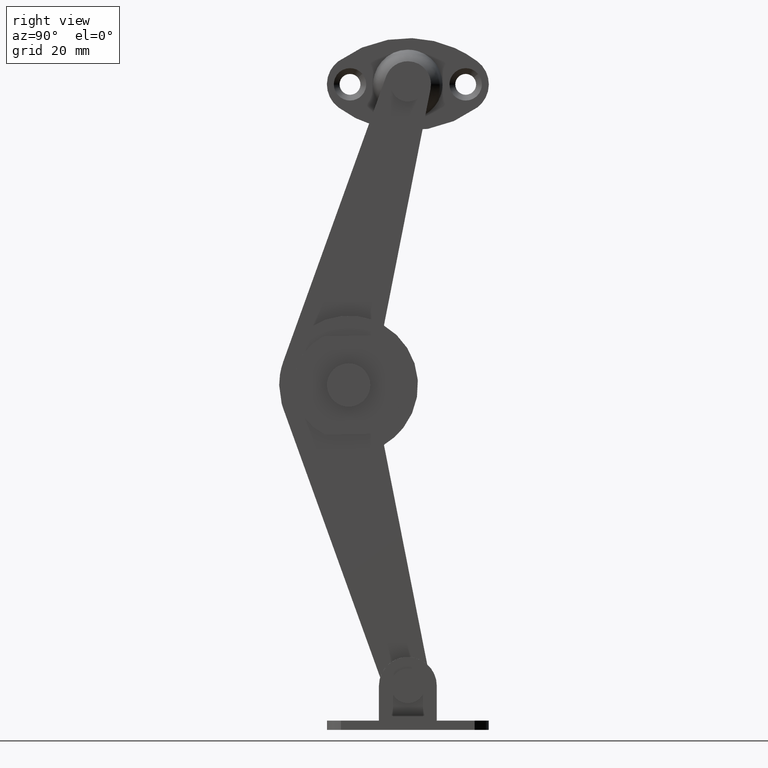
[diagram: clean part render]
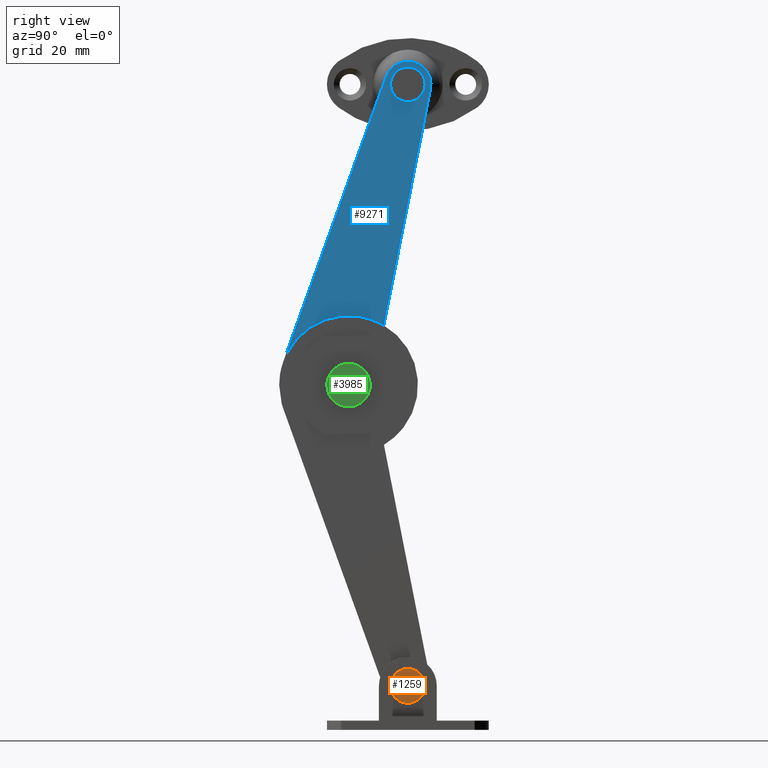
[diagram: same view with three faces highlighted in distinct colors, each labeled with its STEP entity id]
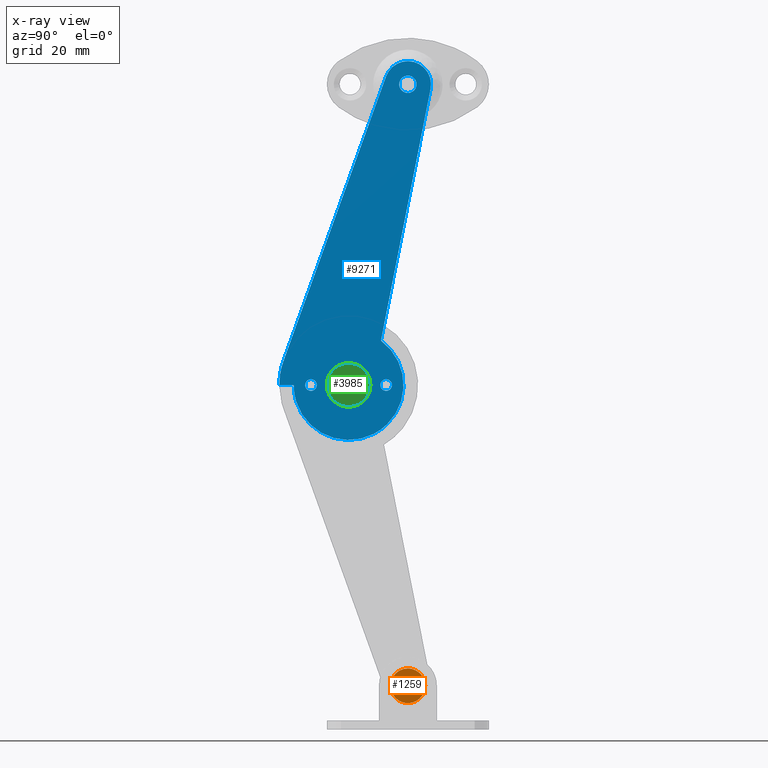
[diagram: x-ray of the same camera — body ghosted, the three highlighted faces saturated]
A machine part, right view with three faces highlighted in distinct colors.
The next image is the same camera in x-ray (body ghosted, the three faces saturated) — at least one of them is partly hidden behind the body in this view.
Their STEP definitions:

[orange] entity #1259 — the highlighted face is a freeform B-spline surface patch.
#910=CARTESIAN_POINT('',(12.299996948242200,-2.149952449955545,-49.907704330964222));
#911=VERTEX_POINT('',#910);
#917=CARTESIAN_POINT('',(12.299996948242200,0.0,-48.999999999999993));
#918=VERTEX_POINT('',#917);
#919=CARTESIAN_POINT('',(12.299996948242200,0.0,-48.999999999999993));
#920=CARTESIAN_POINT('',(12.299996948242200,-0.274665622094044,-48.999901857672981));
#921=CARTESIAN_POINT('',(12.299996948242219,-0.749003718400107,-49.065626616819152));
#922=CARTESIAN_POINT('',(12.299996948242180,-1.496340083006876,-49.359372972187408));
#923=CARTESIAN_POINT('',(12.299996948242219,-1.923702663882289,-49.674915316767247));
#924=CARTESIAN_POINT('',(12.299996948242200,-2.149952449955545,-49.907704330964222));
#925=B_SPLINE_CURVE_WITH_KNOTS('',3,(#919,#920,#921,#922,#923,#924),.UNSPECIFIED.,.F.,.U.,(4,1,1,4),(0.000000035588208,0.823987056845453,1.423224756978765,2.397027281891845),.UNSPECIFIED.);
#926=EDGE_CURVE('',#918,#911,#925,.T.);
#928=CARTESIAN_POINT('',(12.299996948242200,2.999999999999194,-51.999997801678717));
#929=VERTEX_POINT('',#928);
#930=CARTESIAN_POINT('',(12.299996948242200,2.999999999999194,-51.999997801678717));
#931=CARTESIAN_POINT('',(12.299996948242191,3.000544825496204,-51.582668204915223));
#932=CARTESIAN_POINT('',(12.299996948242210,2.849004092391585,-50.871339218554937));
#933=CARTESIAN_POINT('',(12.299996948242210,2.357784113028184,-50.095823077644177));
#934=CARTESIAN_POINT('',(12.299996948242150,1.857589642621747,-49.619715673744999));
#935=CARTESIAN_POINT('',(12.299996948242301,1.399204448902100,-49.329464476093356));
#936=CARTESIAN_POINT('',(12.299996948241940,0.785302707839386,-49.075107326548157));
#937=CARTESIAN_POINT('',(12.299996948242450,0.319092779510090,-48.999831380902833));
#938=CARTESIAN_POINT('',(12.299996948242200,0.0,-48.999999999999993));
#939=B_SPLINE_CURVE_WITH_KNOTS('',3,(#930,#931,#932,#933,#934,#935,#936,#937,#938),.UNSPECIFIED.,.F.,.U.,(4,1,1,1,1,1,4),(0.000000083131377,1.251760573757512,2.135372680041851,2.724391496880097,3.313474384746044,3.755284644076879,4.712505993963672),.UNSPECIFIED.);
#940=EDGE_CURVE('',#929,#918,#939,.T.);
#942=CARTESIAN_POINT('',(12.299996948242200,0.0,-55.0));
#943=VERTEX_POINT('',#942);
#944=CARTESIAN_POINT('',(12.299996948242200,0.0,-55.0));
#945=CARTESIAN_POINT('',(12.299996948242200,0.319093977064725,-55.000168677985023));
#946=CARTESIAN_POINT('',(12.299996948242210,0.785303079312280,-54.924891132133013));
#947=CARTESIAN_POINT('',(12.299996948242191,1.399204909221669,-54.670534527755812));
#948=CARTESIAN_POINT('',(12.299996948242200,1.857601937216594,-54.380286105109683));
#949=CARTESIAN_POINT('',(12.299996948242210,2.286267755007980,-53.972154559812282));
#950=CARTESIAN_POINT('',(12.299996948242191,2.627083385719234,-53.488234411218620));
#951=CARTESIAN_POINT('',(12.299996948242210,2.916964187890844,-52.834387503728848));
#952=CARTESIAN_POINT('',(12.299996948242200,3.000174020348590,-52.319088819190434));
#953=CARTESIAN_POINT('',(12.299996948242200,2.999999999999194,-51.999997801678717));
#954=B_SPLINE_CURVE_WITH_KNOTS('',3,(#944,#945,#946,#947,#948,#949,#950,#951,#952,#953),.UNSPECIFIED.,.F.,.U.,(4,1,1,1,1,1,1,4),(0.000000080110220,0.957223162313735,1.399033147924905,1.988114693766390,2.577133832278411,3.166201750301311,3.755286619770232,4.712508472046021),.UNSPECIFIED.);
#955=EDGE_CURVE('',#943,#929,#954,.T.);
#957=CARTESIAN_POINT('',(12.299996948242200,-2.211832345539840,-54.026771067525189));
#958=VERTEX_POINT('',#957);
#959=CARTESIAN_POINT('',(12.299996948242200,-2.211832345539840,-54.026771067525189));
#960=CARTESIAN_POINT('',(12.299996948242200,-1.949553236368220,-54.313629417733132));
#961=CARTESIAN_POINT('',(12.299996948242200,-1.460295383111385,-54.673039882785332));
#962=CARTESIAN_POINT('',(12.299996948242210,-0.673558610006830,-54.948379226091276));
#963=CARTESIAN_POINT('',(12.299996948242210,-0.233169055009871,-55.000049763189288));
#964=CARTESIAN_POINT('',(12.299996948242200,0.0,-55.0));
#965=B_SPLINE_CURVE_WITH_KNOTS('',3,(#959,#960,#961,#962,#963,#964),.UNSPECIFIED.,.F.,.U.,(4,1,1,4),(0.000000023746991,1.165858597327738,1.787648974361554,2.487163845338240),.UNSPECIFIED.);
#966=EDGE_CURVE('',#958,#943,#965,.T.);
#1050=CARTESIAN_POINT('',(12.299996948242200,-2.999999999999194,-52.000002198321262));
#1051=VERTEX_POINT('',#1050);
#1052=CARTESIAN_POINT('',(12.299996948242200,-2.999999999999194,-52.000002198321262));
#1053=CARTESIAN_POINT('',(12.299996948242210,-3.000451542872161,-52.394132422153668));
#1054=CARTESIAN_POINT('',(12.299996948242150,-2.851523992854785,-53.135492659642388));
#1055=CARTESIAN_POINT('',(12.299996948242240,-2.446955882598586,-53.770565085851793));
#1056=CARTESIAN_POINT('',(12.299996948242200,-2.211832345539840,-54.026771067525189));
#1057=B_SPLINE_CURVE_WITH_KNOTS('',3,(#1052,#1053,#1054,#1055,#1056),.UNSPECIFIED.,.F.,.U.,(4,1,4),(0.000000039538871,1.182203918131734,2.225342712404399),.UNSPECIFIED.);
#1058=EDGE_CURVE('',#1051,#958,#1057,.T.);
#1060=CARTESIAN_POINT('',(12.299996948242200,-2.149952449955545,-49.907704330964222));
#1061=CARTESIAN_POINT('',(12.299996948242200,-2.368766150444576,-50.132313160654007));
#1062=CARTESIAN_POINT('',(12.299996948242200,-2.664363576903597,-50.551235312224541));
#1063=CARTESIAN_POINT('',(12.299996948242191,-2.938792342332988,-51.276472356593743));
#1064=CARTESIAN_POINT('',(12.299996948242200,-3.000084573453634,-51.734681899306729));
#1065=CARTESIAN_POINT('',(12.299996948242200,-2.999999999999194,-52.000002198321262));
#1066=B_SPLINE_CURVE_WITH_KNOTS('',3,(#1060,#1061,#1062,#1063,#1064,#1065),.UNSPECIFIED.,.F.,.U.,(4,1,1,4),(0.000000030067632,0.940673730284006,1.519526927310841,2.315481823150456),.UNSPECIFIED.);
#1067=EDGE_CURVE('',#911,#1051,#1066,.T.);
#1246=CARTESIAN_POINT('',(12.299996948242200,-3.299699988369949,-48.700300011629153));
#1247=CARTESIAN_POINT('',(12.299996948242200,-3.299699988369949,-55.299700149303384));
#1248=CARTESIAN_POINT('',(12.299996948242200,3.299700149302490,-48.700300011629153));
#1249=CARTESIAN_POINT('',(12.299996948242200,3.299700149302490,-55.299700149303384));
#1250=B_SPLINE_SURFACE_WITH_KNOTS('',1,1,((#1246,#1248),(#1247,#1249)),.UNSPECIFIED.,.F.,.F.,.U.,(2,2),(2,2),(0.0,6.599400137674223),(0.0,6.599400137672440),.UNSPECIFIED.);
#1251=ORIENTED_EDGE('',*,*,#926,.T.);
#1252=ORIENTED_EDGE('',*,*,#1067,.T.);
#1253=ORIENTED_EDGE('',*,*,#1058,.T.);
#1254=ORIENTED_EDGE('',*,*,#966,.T.);
#1255=ORIENTED_EDGE('',*,*,#955,.T.);
#1256=ORIENTED_EDGE('',*,*,#940,.T.);
#1257=EDGE_LOOP('',(#1251,#1252,#1253,#1254,#1255,#1256));
#1258=FACE_OUTER_BOUND('',#1257,.T.);
#1259=ADVANCED_FACE('',(#1258),#1250,.T.);

[blue] entity #9271 — the highlighted face is a freeform B-spline surface patch.
#8393=CARTESIAN_POINT('',(7.099998474121129,-16.746973262321148,0.999999999999998));
#8394=VERTEX_POINT('',#8393);
#8395=CARTESIAN_POINT('',(7.099998474121039,-16.030322447163680,0.697432153785637));
#8396=VERTEX_POINT('',#8395);
#8397=CARTESIAN_POINT('',(7.099998474121129,-16.746973262321148,0.999999999999998));
#8398=CARTESIAN_POINT('',(7.099998474121127,-16.622111615370379,1.000093147319487));
#8399=CARTESIAN_POINT('',(7.099998474121049,-16.355874330089421,0.949465219307710));
#8400=CARTESIAN_POINT('',(7.099998474121067,-16.128877241609430,0.798975673064963));
#8401=CARTESIAN_POINT('',(7.099998474121039,-16.030322447163680,0.697432153785637));
#8402=B_SPLINE_CURVE_WITH_KNOTS('',3,(#8397,#8398,#8399,#8400,#8401),.UNSPECIFIED.,.F.,.U.,(4,1,4),(0.000000076756543,0.374556771673141,0.799008976803986),.UNSPECIFIED.);
#8403=EDGE_CURVE('',#8394,#8396,#8402,.T.);
#8405=CARTESIAN_POINT('',(7.099998474121129,-17.746973262321148,-2.220446E-015));
#8406=VERTEX_POINT('',#8405);
#8407=CARTESIAN_POINT('',(7.099998474121129,-17.746973262321148,-2.220446E-015));
#8408=CARTESIAN_POINT('',(7.099998474121128,-17.747026620693539,0.106361786999032));
#8409=CARTESIAN_POINT('',(7.099998474121134,-17.714029834023329,0.310852011469666));
#8410=CARTESIAN_POINT('',(7.099998474121125,-17.561654458519669,0.613806907627810));
#8411=CARTESIAN_POINT('',(7.099998474121133,-17.332154703696741,0.832323547495627));
#8412=CARTESIAN_POINT('',(7.099998474121123,-17.041454900448361,0.969669959522368));
#8413=CARTESIAN_POINT('',(7.099998474121137,-16.853332941561320,1.000062170587517));
#8414=CARTESIAN_POINT('',(7.099998474121129,-16.746973262321148,0.999999999999998));
#8415=B_SPLINE_CURVE_WITH_KNOTS('',3,(#8407,#8408,#8409,#8410,#8411,#8412,#8413,#8414),.UNSPECIFIED.,.F.,.U.,(4,1,1,1,1,4),(0.000000280011996,0.319075622355065,0.613615477763881,1.006309350944507,1.251767417333637,1.570835744389341),.UNSPECIFIED.);
#8416=EDGE_CURVE('',#8406,#8394,#8415,.T.);
#8418=CARTESIAN_POINT('',(7.099998474121129,-16.746973262321148,-1.000000000000002));
#8419=VERTEX_POINT('',#8418);
#8420=CARTESIAN_POINT('',(7.099998474121129,-16.746973262321148,-1.000000000000002));
#8421=CARTESIAN_POINT('',(7.099998474121130,-16.869707082657289,-1.000101785145862));
#8422=CARTESIAN_POINT('',(7.099998474121124,-17.098701757209589,-0.957285573201325));
#8423=CARTESIAN_POINT('',(7.099998474121152,-17.420954392879651,-0.769630472375379));
#8424=CARTESIAN_POINT('',(7.099998474121076,-17.676909887072309,-0.449766441637667));
#8425=CARTESIAN_POINT('',(7.099998474121192,-17.747244164864242,-0.155496370471508));
#8426=CARTESIAN_POINT('',(7.099998474121129,-17.746973262321148,-2.220446E-015));
#8427=B_SPLINE_CURVE_WITH_KNOTS('',3,(#8420,#8421,#8422,#8423,#8424,#8425,#8426),.UNSPECIFIED.,.F.,.U.,(4,1,1,1,4),(0.000000280011188,0.368165073058050,0.687270838010319,1.104486430735103,1.570835744389358),.UNSPECIFIED.);
#8428=EDGE_CURVE('',#8419,#8406,#8427,.T.);
#8430=CARTESIAN_POINT('',(7.099998474121095,-16.009696019405052,-0.675590310082981));
#8431=VERTEX_POINT('',#8430);
#8432=CARTESIAN_POINT('',(7.099998474121095,-16.009696019405052,-0.675590310082981));
#8433=CARTESIAN_POINT('',(7.099998474121104,-16.079678337667929,-0.752021527205665));
#8434=CARTESIAN_POINT('',(7.099998474121104,-16.298328931152600,-0.926494346714773));
#8435=CARTESIAN_POINT('',(7.099998474121128,-16.574143994255579,-1.000469218514898));
#8436=CARTESIAN_POINT('',(7.099998474121129,-16.746973262321148,-1.000000000000002));
#8437=B_SPLINE_CURVE_WITH_KNOTS('',3,(#8432,#8433,#8434,#8435,#8436),.UNSPECIFIED.,.F.,.U.,(4,1,4),(0.000000092268487,0.310905254828941,0.829054434304974),.UNSPECIFIED.);
#8438=EDGE_CURVE('',#8431,#8419,#8437,.T.);
#8516=CARTESIAN_POINT('',(7.099998474121129,-15.746973262321150,-2.220446E-015));
#8517=VERTEX_POINT('',#8516);
#8518=CARTESIAN_POINT('',(7.099998474121039,-16.030322447163680,0.697432153785637));
#8519=CARTESIAN_POINT('',(7.099998474121045,-15.963014172180999,0.628313205574819));
#8520=CARTESIAN_POINT('',(7.099998474121084,-15.810470944008429,0.417769959727234));
#8521=CARTESIAN_POINT('',(7.099998474121104,-15.746613735473520,0.160875180784883));
#8522=CARTESIAN_POINT('',(7.099998474121129,-15.746973262321150,-2.220446E-015));
#8523=B_SPLINE_CURVE_WITH_KNOTS('',3,(#8518,#8519,#8520,#8521,#8522),.UNSPECIFIED.,.F.,.U.,(4,1,4),(0.000000064587901,0.289442960097438,0.771826802563741),.UNSPECIFIED.);
#8524=EDGE_CURVE('',#8396,#8517,#8523,.T.);
#8546=CARTESIAN_POINT('',(7.099998474121129,-15.746973262321150,-2.220446E-015));
#8547=CARTESIAN_POINT('',(7.099998474121120,-15.746667377430580,-0.154602939349846));
#8548=CARTESIAN_POINT('',(7.099998474121104,-15.805523596813799,-0.401552256009830));
#8549=CARTESIAN_POINT('',(7.099998474121100,-15.947035595503280,-0.607247917592661));
#8550=CARTESIAN_POINT('',(7.099998474121095,-16.009696019405052,-0.675590310082981));
#8551=B_SPLINE_CURVE_WITH_KNOTS('',3,(#8546,#8547,#8548,#8549,#8550),.UNSPECIFIED.,.F.,.U.,(4,1,4),(0.000000066372231,0.463613357167976,0.741781674460226),.UNSPECIFIED.);
#8552=EDGE_CURVE('',#8517,#8431,#8551,.T.);
#8583=CARTESIAN_POINT('',(7.099998474121129,-3.746973262321150,1.000000000000002));
#8584=VERTEX_POINT('',#8583);
#8585=CARTESIAN_POINT('',(7.099998474121039,-3.030322447163677,0.697432153785642));
#8586=VERTEX_POINT('',#8585);
#8587=CARTESIAN_POINT('',(7.099998474121129,-3.746973262321150,1.000000000000002));
#8588=CARTESIAN_POINT('',(7.099998474121104,-3.580422453996916,1.000408303964570));
#8589=CARTESIAN_POINT('',(7.099998474121079,-3.314531221267432,0.931849378526263));
#8590=CARTESIAN_POINT('',(7.099998474121051,-3.099955463389899,0.769029342958563));
#8591=CARTESIAN_POINT('',(7.099998474121039,-3.030322447163677,0.697432153785642));
#8592=B_SPLINE_CURVE_WITH_KNOTS('',3,(#8587,#8588,#8589,#8590,#8591),.UNSPECIFIED.,.F.,.U.,(4,1,4),(0.000000076756712,0.499371896076187,0.799008976803982),.UNSPECIFIED.);
#8593=EDGE_CURVE('',#8584,#8586,#8592,.T.);
#8595=CARTESIAN_POINT('',(7.099998474121129,-4.746973262321151,2.220446E-015));
#8596=VERTEX_POINT('',#8595);
#8597=CARTESIAN_POINT('',(7.099998474121129,-4.746973262321151,2.220446E-015));
#8598=CARTESIAN_POINT('',(7.099998474121128,-4.747075180859444,0.122733834214977));
#8599=CARTESIAN_POINT('',(7.099998474121137,-4.704269077375797,0.351740674881284));
#8600=CARTESIAN_POINT('',(7.099998474121126,-4.554065330004074,0.609441352447836));
#8601=CARTESIAN_POINT('',(7.099998474121136,-4.350601764463210,0.812918026070344));
#8602=CARTESIAN_POINT('',(7.099998474121120,-4.090573429253155,0.960241351177768));
#8603=CARTESIAN_POINT('',(7.099998474121131,-3.861513903400657,1.000069467207407));
#8604=CARTESIAN_POINT('',(7.099998474121129,-3.746973262321150,1.000000000000002));
#8605=B_SPLINE_CURVE_WITH_KNOTS('',3,(#8597,#8598,#8599,#8600,#8601,#8602,#8603,#8604),.UNSPECIFIED.,.F.,.U.,(4,1,1,1,1,4),(0.000000280012651,0.368165073059368,0.687270838011445,0.883567168157144,1.227218534335262,1.570835744389344),.UNSPECIFIED.);
#8606=EDGE_CURVE('',#8596,#8584,#8605,.T.);
#8608=CARTESIAN_POINT('',(7.099998474121129,-3.746973262321150,-0.999999999999998));
#8609=VERTEX_POINT('',#8608);
#8610=CARTESIAN_POINT('',(7.099998474121129,-3.746973262321150,-0.999999999999998));
#8611=CARTESIAN_POINT('',(7.099998474121132,-3.877894249240295,-1.000128257328976));
#8612=CARTESIAN_POINT('',(7.099998474121143,-4.090507193776364,-0.957621135381529));
#8613=CARTESIAN_POINT('',(7.099998474121119,-4.334333282010090,-0.819423831503331));
#8614=CARTESIAN_POINT('',(7.099998474121138,-4.517085298945657,-0.653817672574192));
#8615=CARTESIAN_POINT('',(7.099998474121126,-4.691727929805286,-0.392544418537612));
#8616=CARTESIAN_POINT('',(7.099998474121118,-4.747202224657213,-0.147303716996195));
#8617=CARTESIAN_POINT('',(7.099998474121129,-4.746973262321151,2.220446E-015));
#8618=B_SPLINE_CURVE_WITH_KNOTS('',3,(#8610,#8611,#8612,#8613,#8614,#8615,#8616,#8617),.UNSPECIFIED.,.F.,.U.,(4,1,1,1,1,4),(0.000000280012036,0.392710031347957,0.638181018193273,0.834486872022428,1.129035313803002,1.570835744389347),.UNSPECIFIED.);
#8619=EDGE_CURVE('',#8609,#8596,#8618,.T.);
#8621=CARTESIAN_POINT('',(7.099998474121095,-3.009696019405052,-0.675590310082977));
#8622=VERTEX_POINT('',#8621);
#8623=CARTESIAN_POINT('',(7.099998474121095,-3.009696019405052,-0.675590310082977));
#8624=CARTESIAN_POINT('',(7.099998474121105,-3.126110854667486,-0.803332185816826));
#8625=CARTESIAN_POINT('',(7.099998474121105,-3.366989889174412,-0.956704878327267));
#8626=CARTESIAN_POINT('',(7.099998474121129,-3.643343209611206,-1.000040174371714));
#8627=CARTESIAN_POINT('',(7.099998474121129,-3.746973262321150,-0.999999999999998));
#8628=B_SPLINE_CURVE_WITH_KNOTS('',3,(#8623,#8624,#8625,#8626,#8627),.UNSPECIFIED.,.F.,.U.,(4,1,4),(0.000000092268409,0.518149271744422,0.829054434304972),.UNSPECIFIED.);
#8629=EDGE_CURVE('',#8622,#8609,#8628,.T.);
#8706=CARTESIAN_POINT('',(7.099998474121129,-2.746973262321150,2.220446E-015));
#8707=VERTEX_POINT('',#8706);
#8708=CARTESIAN_POINT('',(7.099998474121039,-3.030322447163677,0.697432153785642));
#8709=CARTESIAN_POINT('',(7.099998474121053,-2.946140922462551,0.611056186107056));
#8710=CARTESIAN_POINT('',(7.099998474121076,-2.800596619333674,0.393814828222300));
#8711=CARTESIAN_POINT('',(7.099998474121120,-2.746810569731522,0.136691561653115));
#8712=CARTESIAN_POINT('',(7.099998474121129,-2.746973262321150,2.220446E-015));
#8713=B_SPLINE_CURVE_WITH_KNOTS('',3,(#8708,#8709,#8710,#8711,#8712),.UNSPECIFIED.,.F.,.U.,(4,1,4),(0.000000064587768,0.361813031380444,0.771826802563745),.UNSPECIFIED.);
#8714=EDGE_CURVE('',#8586,#8707,#8713,.T.);
#8736=CARTESIAN_POINT('',(7.099998474121129,-2.746973262321150,2.220446E-015));
#8737=CARTESIAN_POINT('',(7.099998474121128,-2.746916013027499,-0.108176843439163));
#8738=CARTESIAN_POINT('',(7.099998474121105,-2.787475319071340,-0.355409285403463));
#8739=CARTESIAN_POINT('',(7.099998474121106,-2.915589004725389,-0.573140448910331));
#8740=CARTESIAN_POINT('',(7.099998474121095,-3.009696019405052,-0.675590310082977));
#8741=B_SPLINE_CURVE_WITH_KNOTS('',3,(#8736,#8737,#8738,#8739,#8740),.UNSPECIFIED.,.F.,.U.,(4,1,4),(0.000000066372189,0.324529800281138,0.741781674460229),.UNSPECIFIED.);
#8742=EDGE_CURVE('',#8707,#8622,#8741,.T.);
#8773=CARTESIAN_POINT('',(7.099998474121129,0.0,53.500000000001002));
#8774=VERTEX_POINT('',#8773);
#8775=CARTESIAN_POINT('',(7.099998474104325,1.074976035034924,53.046147335216062));
#8776=VERTEX_POINT('',#8775);
#8777=CARTESIAN_POINT('',(7.099998474121129,0.0,53.500000000001002));
#8778=CARTESIAN_POINT('',(7.099998474117424,0.237298402549899,53.500450074399787));
#8779=CARTESIAN_POINT('',(7.099998474111164,0.636295440187918,53.403139272658237));
#8780=CARTESIAN_POINT('',(7.099998474106101,0.961835057696225,53.162498820914621));
#8781=CARTESIAN_POINT('',(7.099998474104325,1.074976035034924,53.046147335216062));
#8782=B_SPLINE_CURVE_WITH_KNOTS('',3,(#8777,#8778,#8779,#8780,#8781),.UNSPECIFIED.,.F.,.U.,(4,1,4),(0.000000071664645,0.711613821486281,1.198513672822464),.UNSPECIFIED.);
#8783=EDGE_CURVE('',#8774,#8776,#8782,.T.);
#8785=CARTESIAN_POINT('',(7.099998474121129,-1.499999999996925,52.000003037285950));
#8786=VERTEX_POINT('',#8785);
#8787=CARTESIAN_POINT('',(7.099998474121129,-1.499999999996925,52.000003037285950));
#8788=CARTESIAN_POINT('',(7.099998474121132,-1.500034461915857,52.134988169319890));
#8789=CARTESIAN_POINT('',(7.099998474121132,-1.460018560689324,52.429525701467441));
#8790=CARTESIAN_POINT('',(7.099998474121120,-1.289257253680850,52.802391590595533));
#8791=CARTESIAN_POINT('',(7.099998474121160,-1.034816164014579,53.104690690606652));
#8792=CARTESIAN_POINT('',(7.099998474121093,-0.776612705511251,53.296185240896037));
#8793=CARTESIAN_POINT('',(7.099998474121131,-0.429442945616301,53.455213512610349));
#8794=CARTESIAN_POINT('',(7.099998474121124,-0.171825793958501,53.500125276207427));
#8795=CARTESIAN_POINT('',(7.099998474121129,0.0,53.500000000001002));
#8796=B_SPLINE_CURVE_WITH_KNOTS('',3,(#8787,#8788,#8789,#8790,#8791,#8792,#8793,#8794,#8795),.UNSPECIFIED.,.F.,.U.,(4,1,1,1,1,1,4),(0.000000288012192,0.404968876915910,0.883616298713433,1.214900688058264,1.583094682608181,1.840825606854566,2.356251904649950),.UNSPECIFIED.);
#8797=EDGE_CURVE('',#8786,#8774,#8796,.T.);
#8799=CARTESIAN_POINT('',(7.099998474121129,0.0,50.500000000001002));
#8800=VERTEX_POINT('',#8799);
#8801=CARTESIAN_POINT('',(7.099998474121129,0.0,50.500000000001002));
#8802=CARTESIAN_POINT('',(7.099998474121130,-0.134984285388195,50.499966860888243));
#8803=CARTESIAN_POINT('',(7.099998474121132,-0.429527960111183,50.539978034267087));
#8804=CARTESIAN_POINT('',(7.099998474121120,-0.802375226699323,50.710756008960843));
#8805=CARTESIAN_POINT('',(7.099998474121148,-1.133064214092411,50.989009428068890));
#8806=CARTESIAN_POINT('',(7.099998474121086,-1.414387801818469,51.398896731232959));
#8807=CARTESIAN_POINT('',(7.099998474121164,-1.500332718864026,51.779056051167217));
#8808=CARTESIAN_POINT('',(7.099998474121129,-1.499999999996925,52.000003037285950));
#8809=B_SPLINE_CURVE_WITH_KNOTS('',3,(#8801,#8802,#8803,#8804,#8805,#8806,#8807,#8808),.UNSPECIFIED.,.F.,.U.,(4,1,1,1,1,4),(0.000000283865871,0.404969462296978,0.883617580101473,1.214902451988867,1.693554854033081,2.356255328463363),.UNSPECIFIED.);
#8810=EDGE_CURVE('',#8800,#8786,#8809,.T.);
#8812=CARTESIAN_POINT('',(7.099998474150938,1.105916710460834,50.986614338558283));
#8813=VERTEX_POINT('',#8812);
#8814=CARTESIAN_POINT('',(7.099998474150938,1.105916710460834,50.986614338558283));
#8815=CARTESIAN_POINT('',(7.099998474147399,0.974749636016586,50.843223789744833));
#8816=CARTESIAN_POINT('',(7.099998474138236,0.634459473345056,50.593039695618231));
#8817=CARTESIAN_POINT('',(7.099998474127074,0.220256803634163,50.499661504098938));
#8818=CARTESIAN_POINT('',(7.099998474121129,0.0,50.500000000001002));
#8819=B_SPLINE_CURVE_WITH_KNOTS('',3,(#8814,#8815,#8816,#8817,#8818),.UNSPECIFIED.,.F.,.U.,(4,1,4),(0.000000086124600,0.582950318513772,1.243582391910074),.UNSPECIFIED.);
#8820=EDGE_CURVE('',#8813,#8800,#8819,.T.);
#8899=CARTESIAN_POINT('',(7.099998474121130,1.499999999996925,51.999996962716040));
#8900=VERTEX_POINT('',#8899);
#8901=CARTESIAN_POINT('',(7.099998474104325,1.074976035034924,53.046147335216062));
#8902=CARTESIAN_POINT('',(7.099998474106983,1.235118547542746,52.882154577577033));
#8903=CARTESIAN_POINT('',(7.099998474112374,1.439007807387284,52.542676257284590));
#8904=CARTESIAN_POINT('',(7.099998474118642,1.500056089075356,52.156768068770823));
#8905=CARTESIAN_POINT('',(7.099998474121130,1.499999999996925,51.999996962716040));
#8906=B_SPLINE_CURVE_WITH_KNOTS('',3,(#8901,#8902,#8903,#8904,#8905),.UNSPECIFIED.,.F.,.U.,(4,1,4),(0.000000060384634,0.687406284221967,1.157742437556682),.UNSPECIFIED.);
#8907=EDGE_CURVE('',#8776,#8900,#8906,.T.);
#8929=CARTESIAN_POINT('',(7.099998474121130,1.499999999996925,51.999996962716040));
#8930=CARTESIAN_POINT('',(7.099998474127953,1.500417042599397,51.768104731375999));
#8931=CARTESIAN_POINT('',(7.099998474138857,1.412230741070903,51.397661598254913));
#8932=CARTESIAN_POINT('',(7.099998474147916,1.199891320813701,51.089136112291527));
#8933=CARTESIAN_POINT('',(7.099998474150938,1.105916710460834,50.986614338558283));
#8934=B_SPLINE_CURVE_WITH_KNOTS('',3,(#8929,#8930,#8931,#8932,#8933),.UNSPECIFIED.,.F.,.U.,(4,1,4),(0.000000063143964,0.695406323015896,1.112669327835264),.UNSPECIFIED.);
#8935=EDGE_CURVE('',#8900,#8813,#8934,.T.);
#8966=CARTESIAN_POINT('',(7.099998474121129,-10.246973262321140,1.500000000000002));
#8967=VERTEX_POINT('',#8966);
#8968=CARTESIAN_POINT('',(7.099998474104323,-9.171997227286218,1.046147335215067));
#8969=VERTEX_POINT('',#8968);
#8970=CARTESIAN_POINT('',(7.099998474121129,-10.246973262321140,1.500000000000002));
#8971=CARTESIAN_POINT('',(7.099998474118984,-10.109641378675221,1.500043521804264));
#8972=CARTESIAN_POINT('',(7.099998474114683,-9.835002509361859,1.462039360666941));
#8973=CARTESIAN_POINT('',(7.099998474108930,-9.465481413114580,1.300551785862600));
#8974=CARTESIAN_POINT('',(7.099998474105660,-9.259048240652342,1.135634804006730));
#8975=CARTESIAN_POINT('',(7.099998474104323,-9.171997227286218,1.046147335215067));
#8976=B_SPLINE_CURVE_WITH_KNOTS('',3,(#8970,#8971,#8972,#8973,#8974,#8975),.UNSPECIFIED.,.F.,.U.,(4,1,1,4),(0.000000071664217,0.411998170775800,0.823975854974179,1.198513672822456),.UNSPECIFIED.);
#8977=EDGE_CURVE('',#8967,#8969,#8976,.T.);
#8979=CARTESIAN_POINT('',(7.099998474121129,-11.746973262318059,0.000003037284961));
#8980=VERTEX_POINT('',#8979);
#8981=CARTESIAN_POINT('',(7.099998474121129,-11.746973262318059,0.000003037284961));
#8982=CARTESIAN_POINT('',(7.099998474121133,-11.747088250036970,0.171820793743129));
#8983=CARTESIAN_POINT('',(7.099998474121120,-11.695804639999000,0.466276129514328));
#8984=CARTESIAN_POINT('',(7.099998474121136,-11.523419780627639,0.808642222821016));
#8985=CARTESIAN_POINT('',(7.099998474121124,-11.315607553995910,1.068293231406080));
#8986=CARTESIAN_POINT('',(7.099998474121139,-11.086228114603699,1.256526689707034));
#8987=CARTESIAN_POINT('',(7.099998474121090,-10.725438255185001,1.443757312344326));
#8988=CARTESIAN_POINT('',(7.099998474121177,-10.443366175160760,1.500220502895896));
#8989=CARTESIAN_POINT('',(7.099998474121129,-10.246973262321140,1.500000000000002));
#8990=B_SPLINE_CURVE_WITH_KNOTS('',3,(#8981,#8982,#8983,#8984,#8985,#8986,#8987,#8988,#8989),.UNSPECIFIED.,.F.,.U.,(4,1,1,1,1,1,4),(0.000000288016019,0.515426584187833,0.883616298716178,1.141351506788639,1.509469417795485,1.767188998334082,2.356251904649897),.UNSPECIFIED.);
#8991=EDGE_CURVE('',#8980,#8967,#8990,.T.);
#8993=CARTESIAN_POINT('',(7.099998474121129,-10.246973262321140,-1.499999999999998));
#8994=VERTEX_POINT('',#8993);
#8995=CARTESIAN_POINT('',(7.099998474121129,-10.246973262321140,-1.499999999999998));
#8996=CARTESIAN_POINT('',(7.099998474121128,-10.467934543212481,-1.500347901674440));
#8997=CARTESIAN_POINT('',(7.099998474121136,-10.823503389180001,-1.419895687693361));
#8998=CARTESIAN_POINT('',(7.099998474121143,-11.207544767958961,-1.169941966007040));
#8999=CARTESIAN_POINT('',(7.099998474121092,-11.445593317517870,-0.919869699579572));
#9000=CARTESIAN_POINT('',(7.099998474121230,-11.672448082187641,-0.552004709833400));
#9001=CARTESIAN_POINT('',(7.099998474121022,-11.747281673951210,-0.220956619499783));
#9002=CARTESIAN_POINT('',(7.099998474121129,-11.746973262318059,0.000003037284961));
#9003=B_SPLINE_CURVE_WITH_KNOTS('',3,(#8995,#8996,#8997,#8998,#8999,#9000,#9001,#9002),.UNSPECIFIED.,.F.,.U.,(4,1,1,1,1,4),(0.000000283865044,0.662700760031224,1.067679616822650,1.362179204002087,1.693554854032483,2.356255328463375),.UNSPECIFIED.);
#9004=EDGE_CURVE('',#8994,#8980,#9003,.T.);
#9006=CARTESIAN_POINT('',(7.099998474150938,-9.141056551860306,-1.013385661442715));
#9007=VERTEX_POINT('',#9006);
#9008=CARTESIAN_POINT('',(7.099998474150938,-9.141056551860306,-1.013385661442715));
#9009=CARTESIAN_POINT('',(7.099998474147879,-9.254756191033160,-1.137627935090197));
#9010=CARTESIAN_POINT('',(7.099998474141991,-9.472701763660078,-1.306760440394076));
#9011=CARTESIAN_POINT('',(7.099998474131598,-9.858390958135191,-1.464652346944669));
#9012=CARTESIAN_POINT('',(7.099998474124992,-10.104474865221350,-1.500056603173263));
#9013=CARTESIAN_POINT('',(7.099998474121129,-10.246973262321140,-1.499999999999998));
#9014=B_SPLINE_CURVE_WITH_KNOTS('',3,(#9008,#9009,#9010,#9011,#9012,#9013),.UNSPECIFIED.,.F.,.U.,(4,1,1,4),(0.000000086123856,0.505209565473649,0.816090856426181,1.243582391910082),.UNSPECIFIED.);
#9015=EDGE_CURVE('',#9007,#8994,#9014,.T.);
#9092=CARTESIAN_POINT('',(7.099998474121129,-8.746973262324215,-0.000003037284955));
#9093=VERTEX_POINT('',#9092);
#9094=CARTESIAN_POINT('',(7.099998474104323,-9.171997227286218,1.046147335215067));
#9095=CARTESIAN_POINT('',(7.099998474106140,-9.062619776101935,0.933836114298759));
#9096=CARTESIAN_POINT('',(7.099998474111233,-8.837226012861406,0.614697346521334));
#9097=CARTESIAN_POINT('',(7.099998474117466,-8.746580485018882,0.229210999300018));
#9098=CARTESIAN_POINT('',(7.099998474121129,-8.746973262324215,-0.000003037284955));
#9099=B_SPLINE_CURVE_WITH_KNOTS('',3,(#9094,#9095,#9096,#9097,#9098),.UNSPECIFIED.,.F.,.U.,(4,1,4),(0.000000060385562,0.470336213587118,1.157742437556691),.UNSPECIFIED.);
#9100=EDGE_CURVE('',#8969,#9093,#9099,.T.);
#9122=CARTESIAN_POINT('',(7.099998474121129,-8.746973262324215,-0.000003037284955));
#9123=CARTESIAN_POINT('',(7.099998474126937,-8.746756266518522,-0.197058959184116));
#9124=CARTESIAN_POINT('',(7.099998474137824,-8.821187977084684,-0.567753175461741));
#9125=CARTESIAN_POINT('',(7.099998474147171,-9.023504797401493,-0.885271463741506));
#9126=CARTESIAN_POINT('',(7.099998474150938,-9.141056551860306,-1.013385661442715));
#9127=B_SPLINE_CURVE_WITH_KNOTS('',3,(#9122,#9123,#9124,#9125,#9126),.UNSPECIFIED.,.F.,.U.,(4,1,4),(0.000000063143451,0.591085765990355,1.112669327835268),.UNSPECIFIED.);
#9128=EDGE_CURVE('',#9093,#9007,#9127,.T.);
#9133=CARTESIAN_POINT('',(7.099998474121120,5.310996266871559,-12.771529278163030));
#9134=CARTESIAN_POINT('',(7.099998474121120,-23.558008327066052,-12.771529278163030));
#9135=CARTESIAN_POINT('',(7.099998474121120,5.310996266871559,59.270799232270917));
#9136=CARTESIAN_POINT('',(7.099998474121120,-23.558008327066052,59.270799232270917));
#9137=B_SPLINE_SURFACE_WITH_KNOTS('',1,1,((#9133,#9135),(#9134,#9136)),.UNSPECIFIED.,.F.,.F.,.U.,(2,2),(2,2),(0.0,28.869004593937600),(0.0,72.042328510433947),.UNSPECIFIED.);
#9138=CARTESIAN_POINT('',(7.099998474121129,-4.656469198437160,7.680902571423180));
#9139=VERTEX_POINT('',#9138);
#9140=CARTESIAN_POINT('',(7.099998474121129,3.924536278575150,51.226640100628487));
#9141=VERTEX_POINT('',#9140);
#9142=CARTESIAN_POINT('',(7.099998474121129,-4.656469198437160,7.680902571423180));
#9143=CARTESIAN_POINT('',(7.099998474121129,3.924536278575150,51.226640100628487));
#9144=QUASI_UNIFORM_CURVE('',1,(#9142,#9143),.UNSPECIFIED.,.F.,.U.);
#9145=EDGE_CURVE('',#9139,#9141,#9144,.T.);
#9146=ORIENTED_EDGE('',*,*,#9145,.T.);
#9147=CARTESIAN_POINT('',(7.099998474121129,1.068189428812523,55.854748607130993));
#9148=VERTEX_POINT('',#9147);
#9149=CARTESIAN_POINT('',(7.099998474121129,1.068189428812523,55.854748607130993));
#9150=CARTESIAN_POINT('',(7.099998474121116,1.428422421830206,55.755066292495059));
#9151=CARTESIAN_POINT('',(7.099998474121158,2.019527073624634,55.497534855442566));
#9152=CARTESIAN_POINT('',(7.099998474121110,2.866929433108905,54.853647066649501));
#9153=CARTESIAN_POINT('',(7.099998474121161,3.449845750849272,54.108597619270590));
#9154=CARTESIAN_POINT('',(7.099998474121126,3.851339256042387,53.191512245243217));
#9155=CARTESIAN_POINT('',(7.099998474121061,4.035359671766779,52.268238210670191));
#9156=CARTESIAN_POINT('',(7.099998474121220,3.993905868546503,51.578054921404252));
#9157=CARTESIAN_POINT('',(7.099998474121129,3.924536278575150,51.226640100628487));
#9158=B_SPLINE_CURVE_WITH_KNOTS('',3,(#9149,#9150,#9151,#9152,#9153,#9154,#9155,#9156,#9157),.UNSPECIFIED.,.F.,.U.,(4,1,1,1,1,1,4),(0.000000133105048,1.121275358516615,1.915532101245046,3.176960730583437,3.924482259644276,4.905629182490943,5.980189455979564),.UNSPECIFIED.);
#9159=EDGE_CURVE('',#9148,#9141,#9158,.T.);
#9160=ORIENTED_EDGE('',*,*,#9159,.F.);
#9161=CARTESIAN_POINT('',(7.099998474121129,-3.762837121346930,53.356885828514500));
#9162=VERTEX_POINT('',#9161);
#9163=CARTESIAN_POINT('',(7.099998474121129,-3.762837121346930,53.356885828514500));
#9164=CARTESIAN_POINT('',(7.099998474121134,-3.657246284342034,53.649910127892490));
#9165=CARTESIAN_POINT('',(7.099998474121136,-3.398091027657529,54.168957045519207));
#9166=CARTESIAN_POINT('',(7.099998474121124,-2.906674987608056,54.777924877793687));
#9167=CARTESIAN_POINT('',(7.099998474121132,-2.341401729829161,55.270363658400377));
#9168=CARTESIAN_POINT('',(7.099998474121131,-1.735409277484177,55.629963201466623));
#9169=CARTESIAN_POINT('',(7.099998474121128,-0.883688250924006,55.939811825733337));
#9170=CARTESIAN_POINT('',(7.099998474121134,0.055221840976699,56.048320765204011));
#9171=CARTESIAN_POINT('',(7.099998474121130,0.768055622182881,55.937954943935921));
#9172=CARTESIAN_POINT('',(7.099998474121129,1.068189428812523,55.854748607130993));
#9173=B_SPLINE_CURVE_WITH_KNOTS('',3,(#9163,#9164,#9165,#9166,#9167,#9168,#9169,#9170,#9171,#9172),.UNSPECIFIED.,.F.,.U.,(4,1,1,1,1,1,1,4),(0.000000133103404,0.934391307715692,1.728650357429165,2.336036747825824,3.176962749476936,3.831042045882933,5.045805197373068,5.980193256315761),.UNSPECIFIED.);
#9174=EDGE_CURVE('',#9162,#9148,#9173,.T.);
#9175=ORIENTED_EDGE('',*,*,#9174,.F.);
#9176=CARTESIAN_POINT('',(7.099998474121129,-21.535477266283451,4.070635878387406));
#9177=VERTEX_POINT('',#9176);
#9178=CARTESIAN_POINT('',(7.099998474121129,-3.762837121346930,53.356885828514500));
#9179=CARTESIAN_POINT('',(7.099998474121129,-21.535477266283451,4.070635878387406));
#9180=QUASI_UNIFORM_CURVE('',1,(#9178,#9179),.UNSPECIFIED.,.F.,.U.);
#9181=EDGE_CURVE('',#9162,#9177,#9180,.T.);
#9182=ORIENTED_EDGE('',*,*,#9181,.T.);
#9183=CARTESIAN_POINT('',(7.099998474121129,-22.246973262321148,4.158241E-015));
#9184=VERTEX_POINT('',#9183);
#9185=CARTESIAN_POINT('',(7.099998474121129,-22.246973262321148,4.158241E-015));
#9186=CARTESIAN_POINT('',(7.099998474121118,-22.246979176061249,0.475867317917176));
#9187=CARTESIAN_POINT('',(7.099998474121152,-22.164588269159800,1.860230492990023));
#9188=CARTESIAN_POINT('',(7.099998474121112,-21.843844059331751,3.216069265816258));
#9189=CARTESIAN_POINT('',(7.099998474121129,-21.535477266283451,4.070635878387406));
#9190=B_SPLINE_CURVE_WITH_KNOTS('',3,(#9185,#9186,#9187,#9188,#9189),.UNSPECIFIED.,.F.,.U.,(4,1,4),(5.057418E-009,1.427617030541497,4.153065065013974),.UNSPECIFIED.);
#9191=EDGE_CURVE('',#9184,#9177,#9190,.T.);
#9192=ORIENTED_EDGE('',*,*,#9191,.F.);
#9193=CARTESIAN_POINT('',(7.099998474121129,-19.746973262321148,0.0));
#9194=VERTEX_POINT('',#9193);
#9195=CARTESIAN_POINT('',(7.099998474121129,-22.246973262321148,4.158241E-015));
#9196=CARTESIAN_POINT('',(7.099998474121129,-19.746973262321148,0.0));
#9197=QUASI_UNIFORM_CURVE('',1,(#9195,#9196),.UNSPECIFIED.,.F.,.U.);
#9198=EDGE_CURVE('',#9184,#9194,#9197,.T.);
#9199=ORIENTED_EDGE('',*,*,#9198,.T.);
#9200=CARTESIAN_POINT('',(7.099998474121129,-5.937671783386525,-8.466399515948522));
#9201=VERTEX_POINT('',#9200);
#9202=CARTESIAN_POINT('',(7.099998474121129,-5.937671783386525,-8.466399515948522));
#9203=CARTESIAN_POINT('',(7.099998474121126,-6.792765926861126,-8.902132865718677));
#9204=CARTESIAN_POINT('',(7.099998474121152,-8.248166251876242,-9.382531316984084));
#9205=CARTESIAN_POINT('',(7.099998474121123,-10.118233941333081,-9.532328218362419));
#9206=CARTESIAN_POINT('',(7.099998474121121,-11.506591075476180,-9.444022556427136));
#9207=CARTESIAN_POINT('',(7.099998474121212,-12.972556351994850,-9.154412024375423));
#9208=CARTESIAN_POINT('',(7.099998474121103,-14.437592945187710,-8.578520081182052));
#9209=CARTESIAN_POINT('',(7.099998474121255,-15.713832467236040,-7.802932220806820));
#9210=CARTESIAN_POINT('',(7.099998474121057,-16.798189160932679,-6.930407867204266));
#9211=CARTESIAN_POINT('',(7.099998474121031,-17.928593901230389,-5.696749205172292));
#9212=CARTESIAN_POINT('',(7.099998474121729,-18.872893305275390,-4.129593354959606));
#9213=CARTESIAN_POINT('',(7.099998474119913,-19.571842691608090,-2.171759585156887));
#9214=CARTESIAN_POINT('',(7.099998474122005,-19.747214713384150,-0.808158609076318));
#9215=CARTESIAN_POINT('',(7.099998474121129,-19.746973262321148,0.0));
#9216=B_SPLINE_CURVE_WITH_KNOTS('',3,(#9202,#9203,#9204,#9205,#9206,#9207,#9208,#9209,#9210,#9211,#9212,#9213,#9214,#9215),.UNSPECIFIED.,.F.,.U.,(4,1,1,1,1,1,1,1,1,1,1,4),(0.000000156827639,2.878969226174817,4.545781217665455,5.606476340765134,7.045987413509991,9.015814209989779,10.303718137147939,11.515953144163410,13.182768601936660,15.304136416999761,16.970924696439319,19.395336818258659),.UNSPECIFIED.);
#9217=EDGE_CURVE('',#9201,#9194,#9216,.T.);
#9218=ORIENTED_EDGE('',*,*,#9217,.F.);
#9219=CARTESIAN_POINT('',(7.099998474121129,-4.656469198437160,7.680902571423180));
#9220=CARTESIAN_POINT('',(7.099998474121096,-4.084651011808683,7.264896602362007));
#9221=CARTESIAN_POINT('',(7.099998474121176,-3.241013601574929,6.492950154826736));
#9222=CARTESIAN_POINT('',(7.099998474121141,-2.152566395491196,5.062843757351256));
#9223=CARTESIAN_POINT('',(7.099998474121134,-1.462015714799522,3.733485681998762));
#9224=CARTESIAN_POINT('',(7.099998474121154,-1.004372355549417,2.312279250471138));
#9225=CARTESIAN_POINT('',(7.099998474121185,-0.750538268638374,0.917676744498406));
#9226=CARTESIAN_POINT('',(7.099998474120935,-0.716689787224081,-0.730394880951964));
#9227=CARTESIAN_POINT('',(7.099998474121209,-1.027431531463287,-2.531148215712296));
#9228=CARTESIAN_POINT('',(7.099998474121139,-1.608996785036496,-4.047081994452509));
#9229=CARTESIAN_POINT('',(7.099998474121113,-2.416068504831734,-5.450813962760297));
#9230=CARTESIAN_POINT('',(7.099998474121136,-3.375093421408143,-6.633683386537036));
#9231=CARTESIAN_POINT('',(7.099998474121127,-4.623931406962972,-7.707113679351667));
#9232=CARTESIAN_POINT('',(7.099998474121130,-5.487536555237176,-8.237318732758702));
#9233=CARTESIAN_POINT('',(7.099998474121129,-5.937671783386525,-8.466399515948522));
#9234=B_SPLINE_CURVE_WITH_KNOTS('',3,(#9219,#9220,#9221,#9222,#9223,#9224,#9225,#9226,#9227,#9228,#9229,#9230,#9231,#9232,#9233),.UNSPECIFIED.,.F.,.U.,(4,1,1,1,1,1,1,1,1,1,1,1,4),(0.000000156761537,2.121357668736543,3.409327073358714,5.379178993446605,6.591412417111384,7.879395379607942,9.621969746225933,11.515957234977281,13.334296848343991,14.470746073259971,16.364844842030461,17.880121771183092,19.395343708183489),.UNSPECIFIED.);
#9235=EDGE_CURVE('',#9139,#9201,#9234,.T.);
#9236=ORIENTED_EDGE('',*,*,#9235,.F.);
#9237=EDGE_LOOP('',(#9146,#9160,#9175,#9182,#9192,#9199,#9218,#9236));
#9238=FACE_OUTER_BOUND('',#9237,.T.);
#9239=ORIENTED_EDGE('',*,*,#8619,.T.);
#9240=ORIENTED_EDGE('',*,*,#8606,.T.);
#9241=ORIENTED_EDGE('',*,*,#8593,.T.);
#9242=ORIENTED_EDGE('',*,*,#8714,.T.);
#9243=ORIENTED_EDGE('',*,*,#8742,.T.);
#9244=ORIENTED_EDGE('',*,*,#8629,.T.);
#9245=EDGE_LOOP('',(#9239,#9240,#9241,#9242,#9243,#9244));
#9246=FACE_BOUND('',#9245,.T.);
#9247=ORIENTED_EDGE('',*,*,#8810,.T.);
#9248=ORIENTED_EDGE('',*,*,#8797,.T.);
#9249=ORIENTED_EDGE('',*,*,#8783,.T.);
#9250=ORIENTED_EDGE('',*,*,#8907,.T.);
#9251=ORIENTED_EDGE('',*,*,#8935,.T.);
#9252=ORIENTED_EDGE('',*,*,#8820,.T.);
#9253=EDGE_LOOP('',(#9247,#9248,#9249,#9250,#9251,#9252));
#9254=FACE_BOUND('',#9253,.T.);
#9255=ORIENTED_EDGE('',*,*,#9004,.T.);
#9256=ORIENTED_EDGE('',*,*,#8991,.T.);
#9257=ORIENTED_EDGE('',*,*,#8977,.T.);
#9258=ORIENTED_EDGE('',*,*,#9100,.T.);
#9259=ORIENTED_EDGE('',*,*,#9128,.T.);
#9260=ORIENTED_EDGE('',*,*,#9015,.T.);
#9261=EDGE_LOOP('',(#9255,#9256,#9257,#9258,#9259,#9260));
#9262=FACE_BOUND('',#9261,.T.);
#9263=ORIENTED_EDGE('',*,*,#8428,.T.);
#9264=ORIENTED_EDGE('',*,*,#8416,.T.);
#9265=ORIENTED_EDGE('',*,*,#8403,.T.);
#9266=ORIENTED_EDGE('',*,*,#8524,.T.);
#9267=ORIENTED_EDGE('',*,*,#8552,.T.);
#9268=ORIENTED_EDGE('',*,*,#8438,.T.);
#9269=EDGE_LOOP('',(#9263,#9264,#9265,#9266,#9267,#9268));
#9270=FACE_BOUND('',#9269,.T.);
#9271=ADVANCED_FACE('',(#9238,#9246,#9254,#9262,#9270),#9137,.F.);

[green] entity #3985 — the highlighted face is a freeform B-spline surface patch.
#3406=CARTESIAN_POINT('',(10.799996948242180,-12.934413965313251,2.615369723750349));
#3407=VERTEX_POINT('',#3406);
#3413=CARTESIAN_POINT('',(10.799996948242180,-10.246973262321140,3.750000000000000));
#3414=VERTEX_POINT('',#3413);
#3415=CARTESIAN_POINT('',(10.799996948242180,-10.246973262321140,3.750000000000000));
#3416=CARTESIAN_POINT('',(10.799996948242160,-10.449837630606750,3.749999440339285));
#3417=CARTESIAN_POINT('',(10.799996948242230,-10.980427393709761,3.706909421913331));
#3418=CARTESIAN_POINT('',(10.799996948242120,-11.944767362379830,3.415712412135354));
#3419=CARTESIAN_POINT('',(10.799996948242230,-12.608173768553460,2.951217849782378));
#3420=CARTESIAN_POINT('',(10.799996948242180,-12.934413965313251,2.615369723750349));
#3421=B_SPLINE_CURVE_WITH_KNOTS('',3,(#3415,#3416,#3417,#3418,#3419,#3420),.UNSPECIFIED.,.F.,.U.,(4,1,1,4),(0.000000041368748,0.608606535643448,1.591739462308282,2.996225826620714),.UNSPECIFIED.);
#3422=EDGE_CURVE('',#3414,#3407,#3421,.T.);
#3424=CARTESIAN_POINT('',(10.799996948242180,-6.496973262321653,0.000001961252920));
#3425=VERTEX_POINT('',#3424);
#3426=CARTESIAN_POINT('',(10.799996948242180,-6.496973262321653,0.000001961252920));
#3427=CARTESIAN_POINT('',(10.799996948242150,-6.496897391021114,0.306799263175455));
#3428=CARTESIAN_POINT('',(10.799996948242230,-6.561351118302663,0.828313212747952));
#3429=CARTESIAN_POINT('',(10.799996948242130,-6.816794616601474,1.570830164349247));
#3430=CARTESIAN_POINT('',(10.799996948242210,-7.216319597584623,2.266264869157946));
#3431=CARTESIAN_POINT('',(10.799996948242180,-7.756743597697574,2.840881697427959));
#3432=CARTESIAN_POINT('',(10.799996948242160,-8.413839753543710,3.297600545359370));
#3433=CARTESIAN_POINT('',(10.799996948242210,-9.203956482498814,3.647913563024056));
#3434=CARTESIAN_POINT('',(10.799996948242169,-9.863462428372744,3.750178610647178));
#3435=CARTESIAN_POINT('',(10.799996948242180,-10.246973262321140,3.750000000000000));
#3436=B_SPLINE_CURVE_WITH_KNOTS('',3,(#3426,#3427,#3428,#3429,#3430,#3431,#3432,#3433,#3434,#3435),.UNSPECIFIED.,.F.,.U.,(4,1,1,1,1,1,1,4),(0.000000149902360,0.920376646485533,1.564672497000777,2.347015107461306,3.313386914603356,3.911663101547186,4.740039072188894,5.890522080394043),.UNSPECIFIED.);
#3437=EDGE_CURVE('',#3425,#3414,#3436,.T.);
#3439=CARTESIAN_POINT('',(10.799996948242180,-10.246973262321140,-3.750000000000000));
#3440=VERTEX_POINT('',#3439);
#3441=CARTESIAN_POINT('',(10.799996948242180,-10.246973262321140,-3.750000000000000));
#3442=CARTESIAN_POINT('',(10.799996948242180,-9.802070622202816,-3.750297265534802));
#3443=CARTESIAN_POINT('',(10.799996948242180,-9.112025874035643,-3.625720598350879));
#3444=CARTESIAN_POINT('',(10.799996948242180,-8.280921157817383,-3.219888697366613));
#3445=CARTESIAN_POINT('',(10.799996948242169,-7.751329636315928,-2.822042029626345));
#3446=CARTESIAN_POINT('',(10.799996948242210,-7.231555440017679,-2.276242348095064));
#3447=CARTESIAN_POINT('',(10.799996948242111,-6.801135753548229,-1.577781384656472));
#3448=CARTESIAN_POINT('',(10.799996948242320,-6.545098840368120,-0.751646637253979));
#3449=CARTESIAN_POINT('',(10.799996948242020,-6.496956899313473,-0.230092366654727));
#3450=CARTESIAN_POINT('',(10.799996948242180,-6.496973262321653,0.000001961252920));
#3451=B_SPLINE_CURVE_WITH_KNOTS('',3,(#3441,#3442,#3443,#3444,#3445,#3446,#3447,#3448,#3449,#3450),.UNSPECIFIED.,.F.,.U.,(4,1,1,1,1,1,1,4),(0.000000149221365,1.334570981517938,2.070905179456787,2.761209637285885,3.313388160224208,4.325853023818907,5.200233892459668,5.890524291197044),.UNSPECIFIED.);
#3452=EDGE_CURVE('',#3440,#3425,#3451,.T.);
#3454=CARTESIAN_POINT('',(10.799996948242180,-13.011763674188209,-2.533463566306663));
#3455=VERTEX_POINT('',#3454);
#3456=CARTESIAN_POINT('',(10.799996948242180,-13.011763674188209,-2.533463566306663));
#3457=CARTESIAN_POINT('',(10.799996948242160,-12.705700546292841,-2.868030774691616));
#3458=CARTESIAN_POINT('',(10.799996948242230,-12.114696233851340,-3.314362709211718));
#3459=CARTESIAN_POINT('',(10.799996948242111,-11.137491212219651,-3.677848427058510));
#3460=CARTESIAN_POINT('',(10.799996948242219,-10.554630417661199,-3.750079326155944));
#3461=CARTESIAN_POINT('',(10.799996948242180,-10.246973262321140,-3.750000000000000));
#3462=B_SPLINE_CURVE_WITH_KNOTS('',3,(#3456,#3457,#3458,#3459,#3460,#3461),.UNSPECIFIED.,.F.,.U.,(4,1,1,4),(0.000000044093799,1.360153817204872,2.185934162193629,3.108889724173796),.UNSPECIFIED.);
#3463=EDGE_CURVE('',#3455,#3440,#3462,.T.);
#3550=CARTESIAN_POINT('',(10.799996948242180,-13.996973262320630,-0.000001961252928));
#3551=VERTEX_POINT('',#3550);
#3552=CARTESIAN_POINT('',(10.799996948242180,-13.996973262320630,-0.000001961252928));
#3553=CARTESIAN_POINT('',(10.799996948242169,-13.997061511077661,-0.318739962642895));
#3554=CARTESIAN_POINT('',(10.799996948242200,-13.933766237376741,-0.811257648308743));
#3555=CARTESIAN_POINT('',(10.799996948242169,-13.637453425192220,-1.692242188520758));
#3556=CARTESIAN_POINT('',(10.799996948242191,-13.305692220635880,-2.213211458468811));
#3557=CARTESIAN_POINT('',(10.799996948242180,-13.011763674188209,-2.533463566306663));
#3558=B_SPLINE_CURVE_WITH_KNOTS('',3,(#3552,#3553,#3554,#3555,#3556,#3557),.UNSPECIFIED.,.F.,.U.,(4,1,1,4),(0.000000016793726,0.956202398481328,1.477766552303153,2.781678920417581),.UNSPECIFIED.);
#3559=EDGE_CURVE('',#3551,#3455,#3558,.T.);
#3561=CARTESIAN_POINT('',(10.799996948242180,-12.934413965313251,2.615369723750349));
#3562=CARTESIAN_POINT('',(10.799996948242150,-13.260699125556339,2.280722591838079));
#3563=CARTESIAN_POINT('',(10.799996948242240,-13.675009348753781,1.653712140282373));
#3564=CARTESIAN_POINT('',(10.799996948242139,-13.951864728641681,0.723554117329879));
#3565=CARTESIAN_POINT('',(10.799996948242210,-13.996986435905161,0.226112509059585));
#3566=CARTESIAN_POINT('',(10.799996948242180,-13.996973262320630,-0.000001961252928));
#3567=B_SPLINE_CURVE_WITH_KNOTS('',3,(#3561,#3562,#3563,#3564,#3565,#3566),.UNSPECIFIED.,.F.,.U.,(4,1,1,4),(0.000000034825627,1.401947735152191,2.215947930160556,2.894298968654166),.UNSPECIFIED.);
#3568=EDGE_CURVE('',#3407,#3551,#3567,.T.);
#3972=CARTESIAN_POINT('',(10.799996948242180,-14.371598036570219,-4.124624985463544));
#3973=CARTESIAN_POINT('',(10.799996948242180,-14.371598036570219,4.124625186629221));
#3974=CARTESIAN_POINT('',(10.799996948242180,-6.122348085740708,-4.124624985463544));
#3975=CARTESIAN_POINT('',(10.799996948242180,-6.122348085740708,4.124625186629221));
#3976=B_SPLINE_SURFACE_WITH_KNOTS('',1,1,((#3972,#3974),(#3973,#3975)),.UNSPECIFIED.,.F.,.F.,.U.,(2,2),(2,2),(0.0,8.249250172092765),(0.0,8.249249950829512),.UNSPECIFIED.);
#3977=ORIENTED_EDGE('',*,*,#3422,.T.);
#3978=ORIENTED_EDGE('',*,*,#3568,.T.);
#3979=ORIENTED_EDGE('',*,*,#3559,.T.);
#3980=ORIENTED_EDGE('',*,*,#3463,.T.);
#3981=ORIENTED_EDGE('',*,*,#3452,.T.);
#3982=ORIENTED_EDGE('',*,*,#3437,.T.);
#3983=EDGE_LOOP('',(#3977,#3978,#3979,#3980,#3981,#3982));
#3984=FACE_OUTER_BOUND('',#3983,.T.);
#3985=ADVANCED_FACE('',(#3984),#3976,.F.);